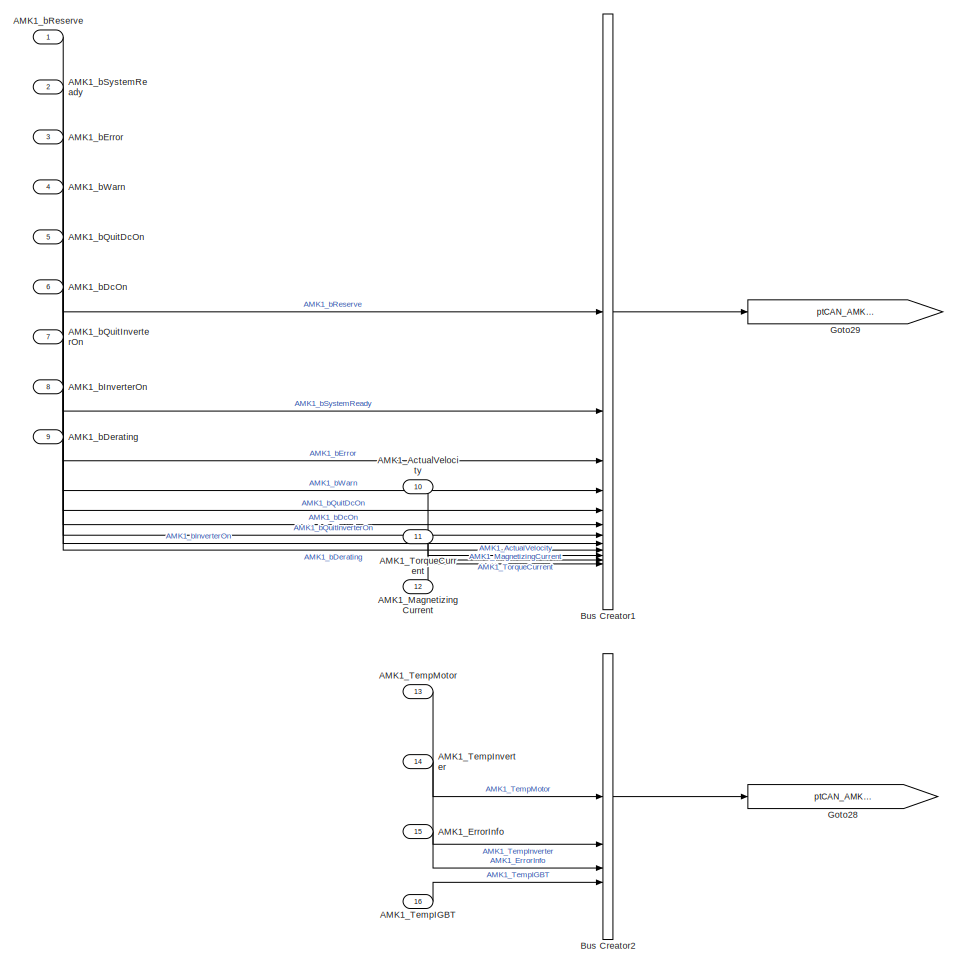
[diagram: root canvas - part 1/7, top left region]
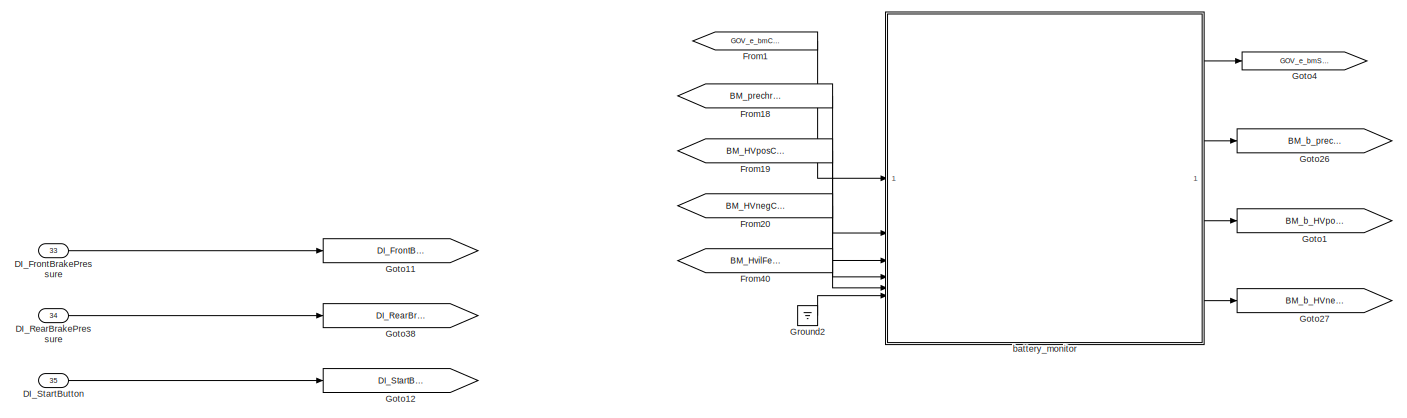
[diagram: root canvas - part 2/7, middle left region]
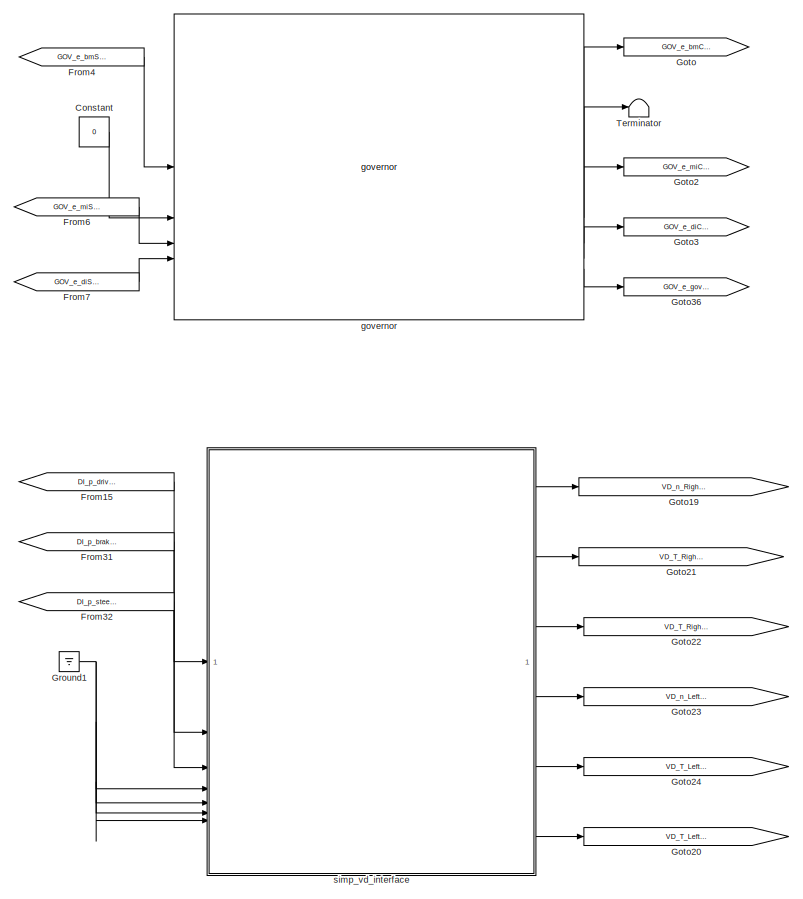
[diagram: root canvas - part 3/7, central region]
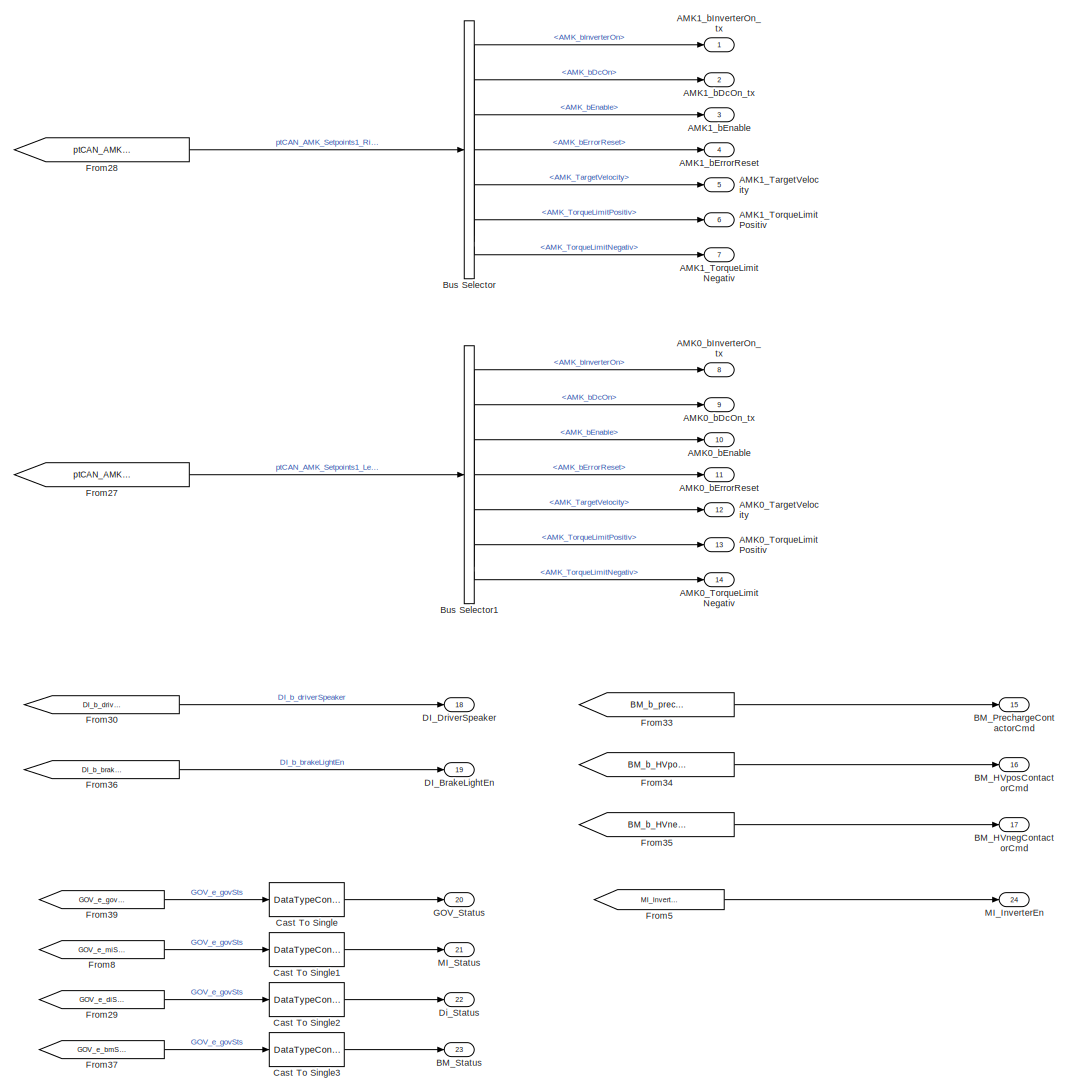
[diagram: root canvas - part 4/7, middle right region]
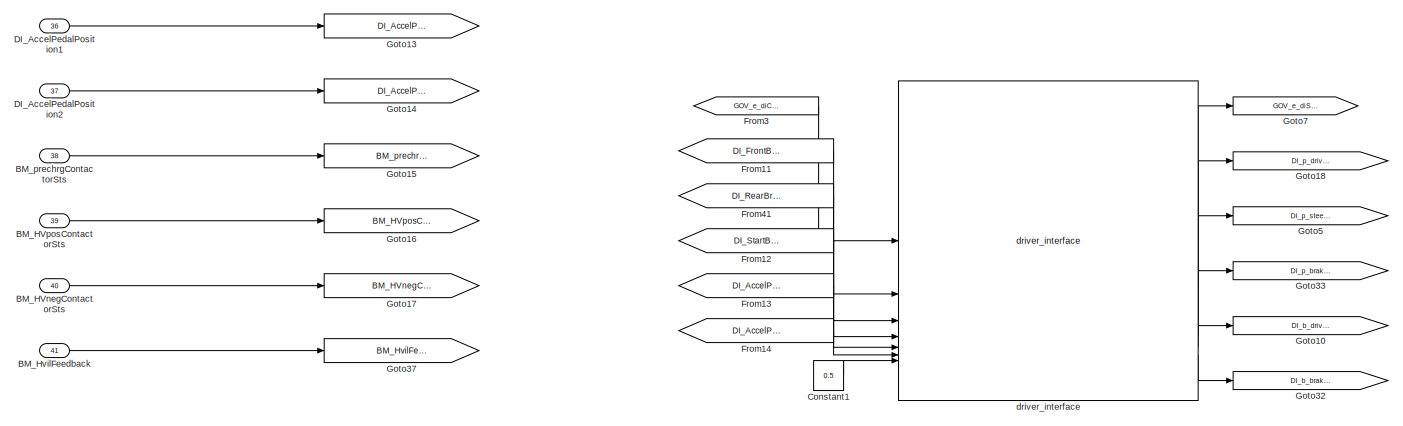
[diagram: root canvas - part 5/7, middle left region]
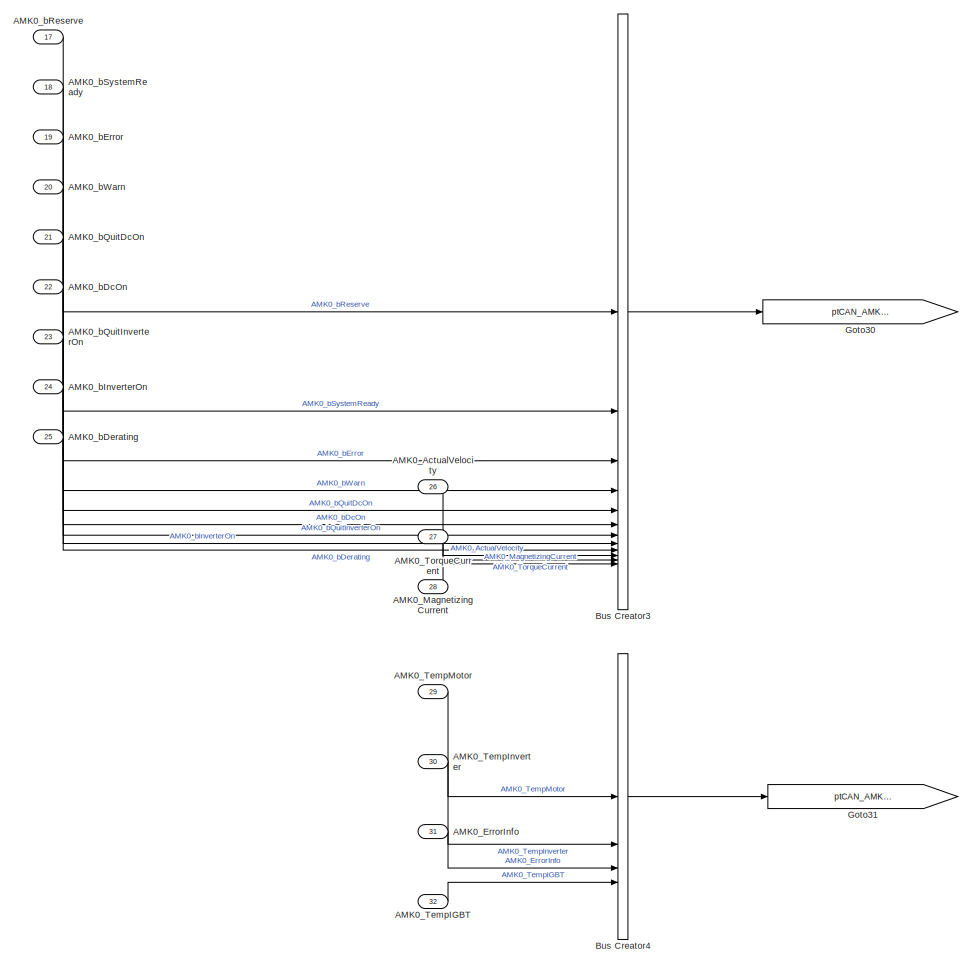
[diagram: root canvas - part 6/7, bottom left region]
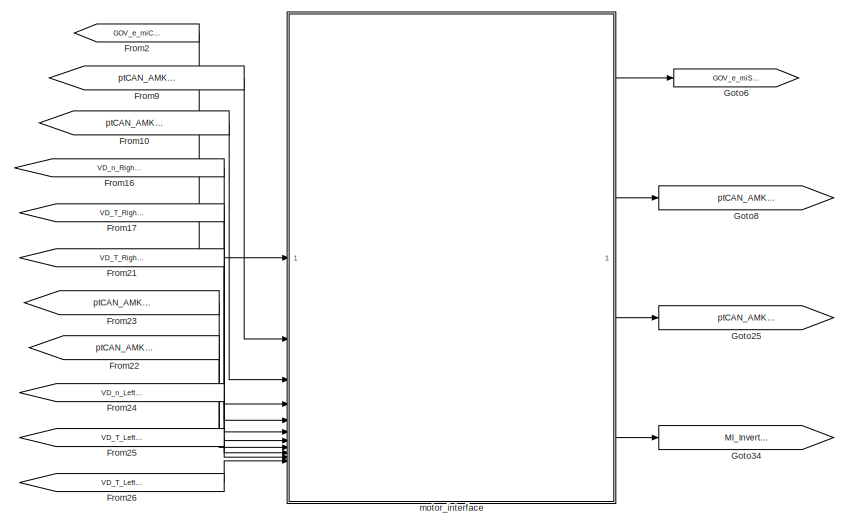
[diagram: root canvas - part 7/7, middle right region]
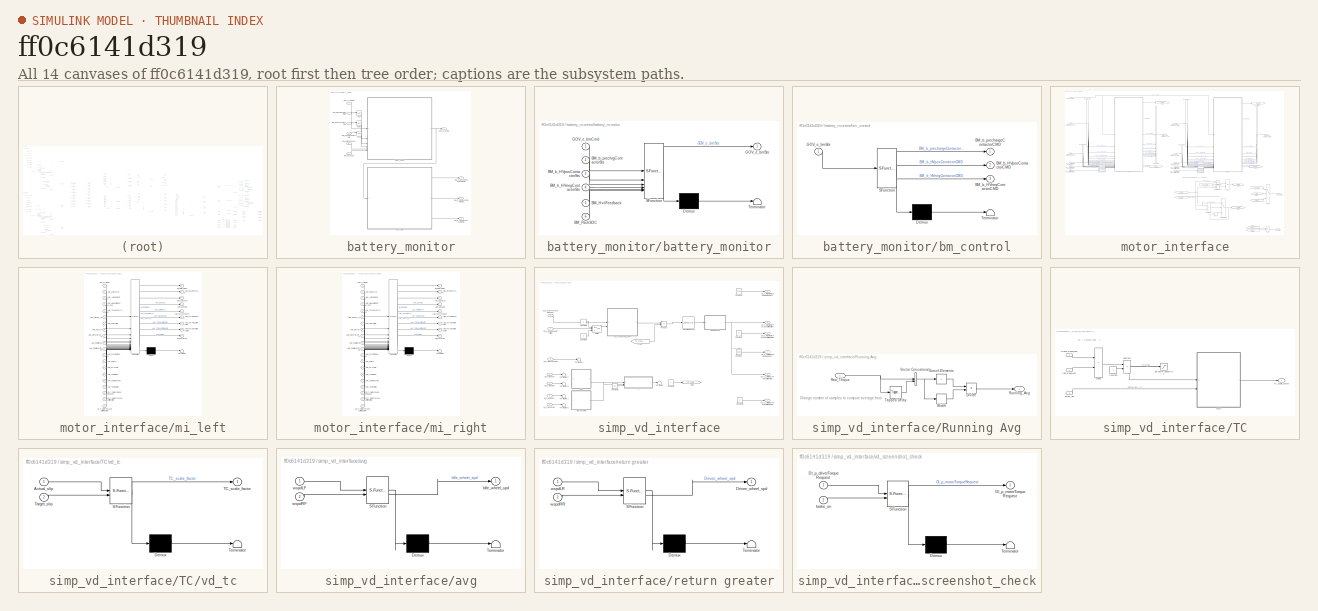
[diagram: thumbnail index - all 14 canvases of the model, root first then tree order]
MODEL slx_ff0c6141d319
KIND model
CONFIG AbsTol = auto
CONFIG EnableMultiTasking = off
CONFIG FixedStep = 0.005
CONFIG MaxStep = auto
CONFIG MinStep = auto
CONFIG RelTol = 1e-3
CONFIG SampleTimeConstraint = Unconstrained
CONFIG SolverName = FixedStepAuto
CONFIG StartTime = 0.0
CONFIG StopTime = inf
BLOCK [Inport] AMK0_ActualVelocity
  OutDataTypeStr = int16
  Port = 26
  Unit = rpm
BLOCK [Inport] AMK0_ErrorInfo
  OutDataTypeStr = uint16
  Port = 31
BLOCK [Inport] AMK0_MagnetizingCurrent
  OutDataTypeStr = int16
  Port = 28
BLOCK [Outport] AMK0_TargetVelocity
  Port = 12
BLOCK [Inport] AMK0_TempIGBT
  OutDataTypeStr = int16
  Port = 32
  Unit = °C
BLOCK [Inport] AMK0_TempInverter
  OutDataTypeStr = int16
  Port = 30
  Unit = °C
BLOCK [Inport] AMK0_TempMotor
  OutDataTypeStr = int16
  Port = 29
  Unit = °C
BLOCK [Inport] AMK0_TorqueCurrent
  OutDataTypeStr = int16
  Port = 27
BLOCK [Outport] AMK0_TorqueLimitNegativ
  Port = 14
BLOCK [Outport] AMK0_TorqueLimitPositiv
  Port = 13
BLOCK [Inport] AMK0_bDcOn
  OutDataTypeStr = boolean
  Port = 22
BLOCK [Outport] AMK0_bDcOn_tx
  Port = 9
BLOCK [Inport] AMK0_bDerating
  OutDataTypeStr = boolean
  Port = 25
BLOCK [Outport] AMK0_bEnable
  Port = 10
BLOCK [Inport] AMK0_bError
  OutDataTypeStr = boolean
  Port = 19
BLOCK [Outport] AMK0_bErrorReset
  Port = 11
BLOCK [Inport] AMK0_bInverterOn
  OutDataTypeStr = boolean
  Port = 24
BLOCK [Outport] AMK0_bInverterOn_tx
  Port = 8
BLOCK [Inport] AMK0_bQuitDcOn
  OutDataTypeStr = boolean
  Port = 21
BLOCK [Inport] AMK0_bQuitInverterOn
  OutDataTypeStr = boolean
  Port = 23
BLOCK [Inport] AMK0_bReserve
  OutDataTypeStr = boolean
  Port = 17
BLOCK [Inport] AMK0_bSystemReady
  OutDataTypeStr = boolean
  Port = 18
BLOCK [Inport] AMK0_bWarn
  OutDataTypeStr = boolean
  Port = 20
BLOCK [Inport] AMK1_ActualVelocity
  OutDataTypeStr = int16
  Port = 10
  Unit = rpm
BLOCK [Inport] AMK1_ErrorInfo
  OutDataTypeStr = uint16
  Port = 15
BLOCK [Inport] AMK1_MagnetizingCurrent
  OutDataTypeStr = int16
  Port = 12
BLOCK [Outport] AMK1_TargetVelocity
  Port = 5
BLOCK [Inport] AMK1_TempIGBT
  OutDataTypeStr = int16
  Port = 16
  Unit = °C
BLOCK [Inport] AMK1_TempInverter
  OutDataTypeStr = int16
  Port = 14
  Unit = °C
BLOCK [Inport] AMK1_TempMotor
  OutDataTypeStr = int16
  Port = 13
  Unit = °C
BLOCK [Inport] AMK1_TorqueCurrent
  OutDataTypeStr = int16
  Port = 11
BLOCK [Outport] AMK1_TorqueLimitNegativ
  Port = 7
BLOCK [Outport] AMK1_TorqueLimitPositiv
  Port = 6
BLOCK [Inport] AMK1_bDcOn
  OutDataTypeStr = boolean
  Port = 6
BLOCK [Outport] AMK1_bDcOn_tx
  Port = 2
BLOCK [Inport] AMK1_bDerating
  OutDataTypeStr = boolean
  Port = 9
BLOCK [Outport] AMK1_bEnable
  Port = 3
BLOCK [Inport] AMK1_bError
  OutDataTypeStr = boolean
  Port = 3
BLOCK [Outport] AMK1_bErrorReset
  Port = 4
BLOCK [Inport] AMK1_bInverterOn
  OutDataTypeStr = boolean
  Port = 8
BLOCK [Outport] AMK1_bInverterOn_tx
BLOCK [Inport] AMK1_bQuitDcOn
  OutDataTypeStr = boolean
  Port = 5
BLOCK [Inport] AMK1_bQuitInverterOn
  OutDataTypeStr = boolean
  Port = 7
BLOCK [Inport] AMK1_bReserve
  OutDataTypeStr = boolean
BLOCK [Inport] AMK1_bSystemReady
  OutDataTypeStr = boolean
  Port = 2
BLOCK [Inport] AMK1_bWarn
  OutDataTypeStr = boolean
  Port = 4
BLOCK [Outport] BM_HVnegContactorCmd
  Port = 17
BLOCK [Inport] BM_HVnegContactorSts
  OutDataTypeStr = boolean
  Port = 40
BLOCK [Outport] BM_HVposContactorCmd
  Port = 16
BLOCK [Inport] BM_HVposContactorSts
  OutDataTypeStr = boolean
  Port = 39
BLOCK [Inport] BM_HvilFeedback
  OutDataTypeStr = boolean
  Port = 41
BLOCK [Outport] BM_PrechargeContactorCmd
  Port = 15
BLOCK [Outport] BM_Status
  Port = 23
BLOCK [Inport] BM_prechrgContactorSts
  OutDataTypeStr = boolean
  Port = 38
BLOCK [BusCreator] Bus Creator1
  DisplayOption = bar
  InheritFromInputs = on
  Inputs = 12
BLOCK [BusCreator] Bus Creator2
  DisplayOption = bar
  InheritFromInputs = on
  Inputs = 4
BLOCK [BusCreator] Bus Creator3
  DisplayOption = bar
  InheritFromInputs = on
  Inputs = 12
BLOCK [BusCreator] Bus Creator4
  DisplayOption = bar
  InheritFromInputs = on
  Inputs = 4
BLOCK [BusSelector] Bus Selector
  OutputSignals = AMK_bInverterOn,AMK_bDcOn,AMK_bEnable,AMK_bErrorReset,AMK_TargetVelocity,AMK_TorqueLimitPositiv,AMK_TorqueLimitNegativ
BLOCK [BusSelector] Bus Selector1
  OutputSignals = AMK_bInverterOn,AMK_bDcOn,AMK_bEnable,AMK_bErrorReset,AMK_TargetVelocity,AMK_TorqueLimitPositiv,AMK_TorqueLimitNegativ
BLOCK [DataTypeConversion] Cast To Single
  OutDataTypeStr = uint8
  RndMeth = Floor
  SaturateOnIntegerOverflow = off
BLOCK [DataTypeConversion] Cast To Single1
  OutDataTypeStr = uint8
  RndMeth = Floor
  SaturateOnIntegerOverflow = off
BLOCK [DataTypeConversion] Cast To Single2
  OutDataTypeStr = uint8
  RndMeth = Floor
  SaturateOnIntegerOverflow = off
BLOCK [DataTypeConversion] Cast To Single3
  OutDataTypeStr = uint8
  RndMeth = Floor
  SaturateOnIntegerOverflow = off
BLOCK [Constant] Constant
  Value = 0
BLOCK [Constant] Constant1
  Value = 0.5
BLOCK [Inport] DI_AccelPedalPosition1
  OutDataTypeStr = double
  Port = 36
BLOCK [Inport] DI_AccelPedalPosition2
  OutDataTypeStr = double
  Port = 37
BLOCK [Outport] DI_BrakeLightEn
  OutDataTypeStr = boolean
  Port = 19
BLOCK [Outport] DI_DriverSpeaker
  OutDataTypeStr = boolean
  Port = 18
BLOCK [Inport] DI_FrontBrakePressure
  OutDataTypeStr = double
  Port = 33
BLOCK [Inport] DI_RearBrakePressure
  OutDataTypeStr = double
  Port = 34
BLOCK [Inport] DI_StartButton
  OutDataTypeStr = boolean
  Port = 35
BLOCK [Outport] Di_Status
  Port = 22
BLOCK [From] From1
  GotoTag = GOV_e_bmCmd
BLOCK [From] From10
  GotoTag = ptCAN_AMK_ActualValues2_Right
BLOCK [From] From11
  GotoTag = DI_FrontBrakePressure
BLOCK [From] From12
  GotoTag = DI_StartButton
BLOCK [From] From13
  GotoTag = DI_AccelPedalPosition1
BLOCK [From] From14
  GotoTag = DI_AccelPedalPosition2
BLOCK [From] From15
  GotoTag = DI_p_driverTorqueRequest
BLOCK [From] From16
  GotoTag = VD_n_RightMotorSpeedRequest
BLOCK [From] From17
  GotoTag = VD_T_RightMotorTorqueLimitPositive
BLOCK [From] From18
  GotoTag = BM_prechrgContactorSts
BLOCK [From] From19
  GotoTag = BM_HVposContactorSts
BLOCK [From] From2
  GotoTag = GOV_e_miCmd
BLOCK [From] From20
  GotoTag = BM_HVnegContactorSts
BLOCK [From] From21
  GotoTag = VD_T_RightMotorTorqueLimitNegative
BLOCK [From] From22
  GotoTag = ptCAN_AMK_ActualValues2_Left
BLOCK [From] From23
  GotoTag = ptCAN_AMK_ActualValues1_Left
BLOCK [From] From24
  GotoTag = VD_n_LeftMotorSpeedRequest
BLOCK [From] From25
  GotoTag = VD_T_LeftMotorTorqueLimitPositive
BLOCK [From] From26
  GotoTag = VD_T_LeftMotorTorqueLimitNegative
BLOCK [From] From27
  GotoTag = ptCAN_AMK_Setpoints1_Left
BLOCK [From] From28
  GotoTag = ptCAN_AMK_Setpoints1_Right
BLOCK [From] From29
  GotoTag = GOV_e_diSts
BLOCK [From] From3
  GotoTag = GOV_e_diCmd
BLOCK [From] From30
  GotoTag = DI_b_driverSpeaker
BLOCK [From] From31
  GotoTag = DI_p_brakePedalPosition
BLOCK [From] From32
  GotoTag = DI_p_steeringAngle
BLOCK [From] From33
  GotoTag = BM_b_prechargeContactorCMD
BLOCK [From] From34
  GotoTag = BM_b_HVposContactorCMD
BLOCK [From] From35
  GotoTag = BM_b_HVnegContactorCMD
BLOCK [From] From36
  GotoTag = DI_b_brakeLightEn
BLOCK [From] From37
  GotoTag = GOV_e_bmSts
BLOCK [From] From39
  GotoTag = GOV_e_govSts
BLOCK [From] From4
  GotoTag = GOV_e_bmSts
BLOCK [From] From40
  GotoTag = BM_HvilFeedback
BLOCK [From] From41
  GotoTag = DI_RearBrakePressure
BLOCK [From] From5
  GotoTag = MI_InverterEn
BLOCK [From] From6
  GotoTag = GOV_e_miSts
BLOCK [From] From7
  GotoTag = GOV_e_diSts
BLOCK [From] From8
  GotoTag = GOV_e_miSts
BLOCK [From] From9
  GotoTag = ptCAN_AMK_ActualValues1_Right
BLOCK [Outport] GOV_Status
  Port = 20
BLOCK [Goto] Goto
  GotoTag = GOV_e_bmCmd
BLOCK [Goto] Goto1
  GotoTag = BM_b_HVposContactorCMD
BLOCK [Goto] Goto10
  GotoTag = DI_b_driverSpeaker
BLOCK [Goto] Goto11
  GotoTag = DI_FrontBrakePressure
BLOCK [Goto] Goto12
  GotoTag = DI_StartButton
BLOCK [Goto] Goto13
  GotoTag = DI_AccelPedalPosition1
BLOCK [Goto] Goto14
  GotoTag = DI_AccelPedalPosition2
BLOCK [Goto] Goto15
  GotoTag = BM_prechrgContactorSts
BLOCK [Goto] Goto16
  GotoTag = BM_HVposContactorSts
BLOCK [Goto] Goto17
  GotoTag = BM_HVnegContactorSts
BLOCK [Goto] Goto18
  GotoTag = DI_p_driverTorqueRequest
BLOCK [Goto] Goto19
  GotoTag = VD_n_RightMotorSpeedRequest
BLOCK [Goto] Goto2
  GotoTag = GOV_e_miCmd
BLOCK [Goto] Goto20
  GotoTag = VD_T_LeftMotorTorqueLimitNegative
BLOCK [Goto] Goto21
  GotoTag = VD_T_RightMotorTorqueLimitPositive
BLOCK [Goto] Goto22
  GotoTag = VD_T_RightMotorTorqueLimitNegative
BLOCK [Goto] Goto23
  GotoTag = VD_n_LeftMotorSpeedRequest
BLOCK [Goto] Goto24
  GotoTag = VD_T_LeftMotorTorqueLimitPositive
BLOCK [Goto] Goto25
  GotoTag = ptCAN_AMK_Setpoints1_Left
BLOCK [Goto] Goto26
  GotoTag = BM_b_prechargeContactorCMD
BLOCK [Goto] Goto27
  GotoTag = BM_b_HVnegContactorCMD
  NameLocation = left
BLOCK [Goto] Goto28
  GotoTag = ptCAN_AMK_ActualValues2_Right
BLOCK [Goto] Goto29
  GotoTag = ptCAN_AMK_ActualValues1_Right
BLOCK [Goto] Goto3
  GotoTag = GOV_e_diCmd
BLOCK [Goto] Goto30
  GotoTag = ptCAN_AMK_ActualValues1_Left
BLOCK [Goto] Goto31
  GotoTag = ptCAN_AMK_ActualValues2_Left
BLOCK [Goto] Goto32
  GotoTag = DI_b_brakeLightEn
BLOCK [Goto] Goto33
  GotoTag = DI_p_brakePedalPosition
BLOCK [Goto] Goto34
  GotoTag = MI_InverterEn
BLOCK [Goto] Goto36
  GotoTag = GOV_e_govSts
BLOCK [Goto] Goto37
  GotoTag = BM_HvilFeedback
BLOCK [Goto] Goto38
  GotoTag = DI_RearBrakePressure
BLOCK [Goto] Goto4
  GotoTag = GOV_e_bmSts
BLOCK [Goto] Goto5
  GotoTag = DI_p_steeringAngle
BLOCK [Goto] Goto6
  GotoTag = GOV_e_miSts
BLOCK [Goto] Goto7
  GotoTag = GOV_e_diSts
BLOCK [Goto] Goto8
  GotoTag = ptCAN_AMK_Setpoints1_Right
BLOCK [Ground] Ground1
BLOCK [Ground] Ground2
BLOCK [Outport] MI_InverterEn
  OutDataTypeStr = boolean
  Port = 24
BLOCK [Outport] MI_Status
  Port = 21
BLOCK [Terminator] Terminator
BLOCK [SubSystem] battery_monitor
  AncestorBlock = battery_monitor_lib/battery_monitor
BLOCK [Inport] battery_monitor/BM_HVnegContactorSts
  Port = 4
BLOCK [Inport] battery_monitor/BM_HVposContactorSts
  Port = 3
BLOCK [Inport] battery_monitor/BM_HvilFeedback
  Port = 5
BLOCK [Inport] battery_monitor/BM_PackSOC
  Port = 6
BLOCK [Outport] battery_monitor/BM_b_HVnegContactorCMD
  Port = 4
BLOCK [Outport] battery_monitor/BM_b_HVposContactorCMD
  Port = 3
BLOCK [Outport] battery_monitor/BM_b_prechargeContactorCMD
  Port = 2
BLOCK [Inport] battery_monitor/BM_prechrgContactorSts
  Port = 2
BLOCK [Inport] battery_monitor/GOV_e_bmCmd
BLOCK [Outport] battery_monitor/GOV_e_bmSts
BLOCK [Logic] battery_monitor/NOT
  AllPortsSameDT = off
  IconShape = distinctive
  Operator = NOT
  OutDataTypeStr = boolean
BLOCK [Logic] battery_monitor/NOT1
  AllPortsSameDT = off
  IconShape = distinctive
  Operator = NOT
  OutDataTypeStr = boolean
BLOCK [Logic] battery_monitor/NOT2
  AllPortsSameDT = off
  IconShape = distinctive
  Operator = NOT
  OutDataTypeStr = boolean
BLOCK [SubSystem] battery_monitor/battery_monitor
  ErrorFcn = Stateflow.Translate.translate
  PermitHierarchicalResolution = ExplicitOnly
  SFBlockType = Chart
  TreatAsAtomicUnit = on
BLOCK [Demux] battery_monitor/battery_monitor/ Demux 
  Outputs = 1
BLOCK [S-Function] battery_monitor/battery_monitor/ SFunction 
  EnableBusSupport = on
  FunctionName = sf_sfun
  PortCounts = [6 2]
  SFcnIsStateOwnerBlock = off
  SFunctionDeploymentMode = off
  Tag = Stateflow S-Function 4
BLOCK [Terminator] battery_monitor/battery_monitor/ Terminator 
BLOCK [Inport] battery_monitor/battery_monitor/BM_HvilFeedback
  Port = 5
BLOCK [Inport] battery_monitor/battery_monitor/BM_PackSOC
  Port = 6
BLOCK [Inport] battery_monitor/battery_monitor/BM_b_HVnegContactorSts
  Port = 4
BLOCK [Inport] battery_monitor/battery_monitor/BM_b_HVposContactorSts
  Port = 3
BLOCK [Inport] battery_monitor/battery_monitor/BM_b_prechrgContactorSts
  Port = 2
BLOCK [Inport] battery_monitor/battery_monitor/GOV_e_bmCmd
BLOCK [Outport] battery_monitor/battery_monitor/GOV_e_bmSts
BLOCK [SubSystem] battery_monitor/bm_control
  ErrorFcn = Stateflow.Translate.translate
  PermitHierarchicalResolution = ExplicitOnly
  SFBlockType = Chart
  TreatAsAtomicUnit = on
BLOCK [Demux] battery_monitor/bm_control/ Demux 
  Outputs = 1
BLOCK [S-Function] battery_monitor/bm_control/ SFunction 
  EnableBusSupport = on
  FunctionName = sf_sfun
  PortCounts = [1 4]
  SFcnIsStateOwnerBlock = off
  SFunctionDeploymentMode = off
  Tag = Stateflow S-Function 5
BLOCK [Terminator] battery_monitor/bm_control/ Terminator 
BLOCK [Outport] battery_monitor/bm_control/BM_b_HVnegContactorCMD
  Port = 3
BLOCK [Outport] battery_monitor/bm_control/BM_b_HVposContactorCMD
  Port = 2
BLOCK [Outport] battery_monitor/bm_control/BM_b_prechargeContactorCMD
BLOCK [Inport] battery_monitor/bm_control/GOV_e_bmSts
BLOCK [Reference] driver_interface  REF=driver_interface_lib/driver_interface  (lib defined in slx_3cb616a1b385)
  SourceBlock = driver_interface_lib/driver_interface
  SourceType = SubSystem
BLOCK [Reference] governor  REF=governor_lib/governor  (lib defined in slx_791b6fe89bfd)
  SourceBlock = governor_lib/governor
  SourceType = SubSystem
BLOCK [SubSystem] motor_interface
  AncestorBlock = motor_interface_lib/motor_interface
BLOCK [Logic] motor_interface/AND
  AllPortsSameDT = off
  OutDataTypeStr = boolean
BLOCK [BusCreator] motor_interface/Bus Creator
  DisplayOption = bar
  InheritFromInputs = on
  Inputs = 7
BLOCK [BusCreator] motor_interface/Bus Creator1
  DisplayOption = bar
  InheritFromInputs = on
  Inputs = 7
BLOCK [BusSelector] motor_interface/Bus Selector
  OutputSignals = AMK1_bReserve,AMK1_ActualVelocity,AMK1_MagnetizingCurrent,AMK1_TorqueCurrent,AMK1_bDcOn,AMK1_bDerating,AMK1_bError,AMK1_bInverterOn,AMK1_bQuitDcOn,AMK1_bQuitInverterOn,AMK1_bSystemReady,AMK1_bWarn
BLOCK [BusSelector] motor_interface/Bus Selector1
  OutputSignals = AMK1_ErrorInfo,AMK1_TempIGBT,AMK1_TempInverter,AMK1_TempMotor
BLOCK [BusSelector] motor_interface/Bus Selector2
  OutputSignals = AMK0_bReserve,AMK0_ActualVelocity,AMK0_MagnetizingCurrent,AMK0_TorqueCurrent,AMK0_bDcOn,AMK0_bDerating,AMK0_bError,AMK0_bInverterOn,AMK0_bQuitDcOn,AMK0_bQuitInverterOn,AMK0_bSystemReady,AMK0_bWarn
BLOCK [BusSelector] motor_interface/Bus Selector3
  OutputSignals = AMK0_ErrorInfo,AMK0_TempIGBT,AMK0_TempInverter,AMK0_TempMotor
BLOCK [DataTypeConversion] motor_interface/Cast To Single
  OutDataTypeStr = single
  RndMeth = Floor
  SaturateOnIntegerOverflow = off
BLOCK [DataTypeConversion] motor_interface/Cast To Single1
  OutDataTypeStr = single
  RndMeth = Floor
  SaturateOnIntegerOverflow = off
BLOCK [DataTypeConversion] motor_interface/Cast To Single2
  OutDataTypeStr = single
  RndMeth = Floor
  SaturateOnIntegerOverflow = off
BLOCK [DataTypeConversion] motor_interface/Cast To Single3
  OutDataTypeStr = single
  RndMeth = Floor
  SaturateOnIntegerOverflow = off
BLOCK [DataTypeConversion] motor_interface/Cast To Single4
  OutDataTypeStr = single
  RndMeth = Floor
  SaturateOnIntegerOverflow = off
BLOCK [DataTypeConversion] motor_interface/Cast To Single5
  OutDataTypeStr = single
  RndMeth = Floor
  SaturateOnIntegerOverflow = off
BLOCK [Constant] motor_interface/Constant
  OutDataTypeStr = Enum: MI_STATUSES
  Value = MI_STATUSES.MI_STS_ERROR
BLOCK [Constant] motor_interface/Constant1
  OutDataTypeStr = Enum: MI_STATUSES
  Value = MI_STATUSES.MI_STS_ERROR
BLOCK [Delay] motor_interface/Delay
  DelayLength = 1
  InitialCondition = MI_STATUSES.OFF
  InputPortMap = u0
BLOCK [From] motor_interface/From
  GotoTag = Left_motorStatus
BLOCK [From] motor_interface/From1
  GotoTag = Right_motorStatus
BLOCK [From] motor_interface/From2
  GotoTag = overallMotorState
BLOCK [From] motor_interface/From3
  GotoTag = Left_inverterEn
BLOCK [From] motor_interface/From4
  GotoTag = motorErrorActive
BLOCK [From] motor_interface/From5
  GotoTag = Right_inverterEn
BLOCK [Inport] motor_interface/GOV_e_miCmd
BLOCK [Outport] motor_interface/GOV_e_miSts
BLOCK [Goto] motor_interface/Goto
  GotoTag = Left_motorStatus
BLOCK [Goto] motor_interface/Goto1
  GotoTag = Right_motorStatus
BLOCK [Goto] motor_interface/Goto2
  GotoTag = motorErrorActive
BLOCK [Goto] motor_interface/Goto3
  GotoTag = overallMotorState
BLOCK [Goto] motor_interface/Goto4
  GotoTag = Left_inverterEn
BLOCK [Goto] motor_interface/Goto5
  GotoTag = Right_inverterEn
BLOCK [RelationalOperator] motor_interface/GreaterThan
  InputSameDT = off
  Operator = ==
  OutDataTypeStr = boolean
  RndMeth = Simplest
BLOCK [Outport] motor_interface/MI_InverterEn
  Port = 4
BLOCK [Logic] motor_interface/OR
  AllPortsSameDT = off
  IconShape = distinctive
  Operator = OR
  OutDataTypeStr = boolean
BLOCK [Switch] motor_interface/Switch
  Criteria = u2 > Threshold
  InputSameDT = off
  SaturateOnIntegerOverflow = off
BLOCK [Inport] motor_interface/VD_T_LeftMotorTorqueLimitNegative
  Port = 11
BLOCK [Inport] motor_interface/VD_T_LeftMotorTorqueLimitPositive
  Port = 10
BLOCK [Inport] motor_interface/VD_T_RightMotorTorqueLimitNegative
  Port = 6
BLOCK [Inport] motor_interface/VD_T_RightMotorTorqueLimitPositive
  Port = 5
BLOCK [Inport] motor_interface/VD_n_LeftMotorSpeedRequest
  Port = 9
BLOCK [Inport] motor_interface/VD_n_RightMotorSpeedRequest
  Port = 4
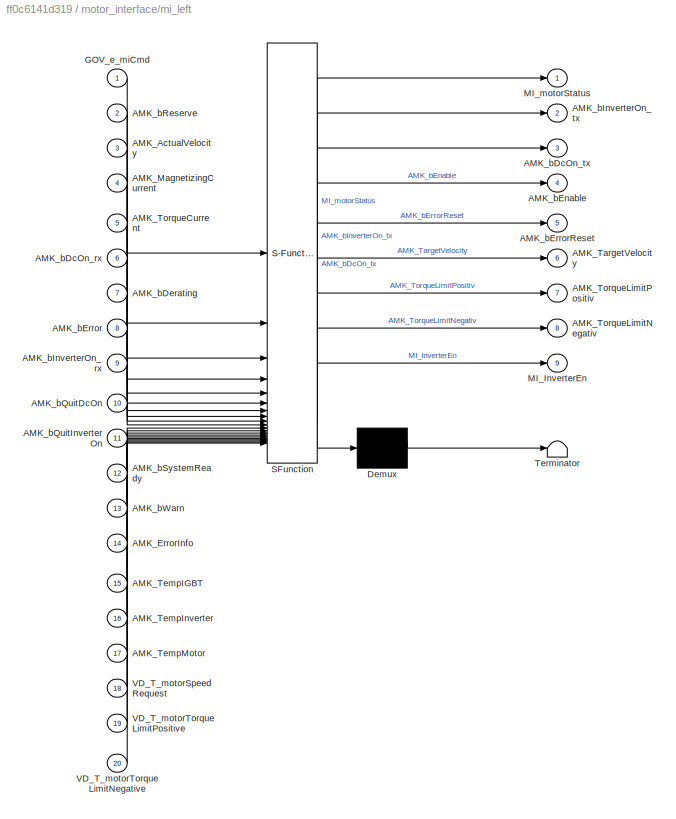
BLOCK [SubSystem] motor_interface/mi_left
  ErrorFcn = Stateflow.Translate.translate
  PermitHierarchicalResolution = ExplicitOnly
  SFBlockType = Chart
  TreatAsAtomicUnit = on
BLOCK [Demux] motor_interface/mi_left/ Demux 
  Outputs = 1
BLOCK [S-Function] motor_interface/mi_left/ SFunction 
  EnableBusSupport = on
  FunctionName = sf_sfun
  PortCounts = [20 10]
  SFcnIsStateOwnerBlock = off
  SFunctionDeploymentMode = off
  Tag = Stateflow S-Function 9
BLOCK [Terminator] motor_interface/mi_left/ Terminator 
BLOCK [Inport] motor_interface/mi_left/AMK_ActualVelocity
  Port = 3
BLOCK [Inport] motor_interface/mi_left/AMK_ErrorInfo
  Port = 14
BLOCK [Inport] motor_interface/mi_left/AMK_MagnetizingCurrent
  Port = 4
BLOCK [Outport] motor_interface/mi_left/AMK_TargetVelocity
  Port = 6
BLOCK [Inport] motor_interface/mi_left/AMK_TempIGBT
  Port = 15
BLOCK [Inport] motor_interface/mi_left/AMK_TempInverter
  Port = 16
BLOCK [Inport] motor_interface/mi_left/AMK_TempMotor
  Port = 17
BLOCK [Inport] motor_interface/mi_left/AMK_TorqueCurrent
  Port = 5
BLOCK [Outport] motor_interface/mi_left/AMK_TorqueLimitNegativ
  Port = 8
BLOCK [Outport] motor_interface/mi_left/AMK_TorqueLimitPositiv
  Port = 7
BLOCK [Inport] motor_interface/mi_left/AMK_bDcOn_rx
  Port = 6
BLOCK [Outport] motor_interface/mi_left/AMK_bDcOn_tx
  Port = 3
BLOCK [Inport] motor_interface/mi_left/AMK_bDerating
  Port = 7
BLOCK [Outport] motor_interface/mi_left/AMK_bEnable
  Port = 4
BLOCK [Inport] motor_interface/mi_left/AMK_bError
  Port = 8
BLOCK [Outport] motor_interface/mi_left/AMK_bErrorReset
  Port = 5
BLOCK [Inport] motor_interface/mi_left/AMK_bInverterOn_rx
  Port = 9
BLOCK [Outport] motor_interface/mi_left/AMK_bInverterOn_tx
  Port = 2
BLOCK [Inport] motor_interface/mi_left/AMK_bQuitDcOn
  Port = 10
BLOCK [Inport] motor_interface/mi_left/AMK_bQuitInverterOn
  Port = 11
BLOCK [Inport] motor_interface/mi_left/AMK_bReserve
  Port = 2
BLOCK [Inport] motor_interface/mi_left/AMK_bSystemReady
  Port = 12
BLOCK [Inport] motor_interface/mi_left/AMK_bWarn
  Port = 13
BLOCK [Inport] motor_interface/mi_left/GOV_e_miCmd
BLOCK [Outport] motor_interface/mi_left/MI_InverterEn
  Port = 9
BLOCK [Outport] motor_interface/mi_left/MI_motorStatus
BLOCK [Inport] motor_interface/mi_left/VD_T_motorSpeedRequest
  Port = 18
BLOCK [Inport] motor_interface/mi_left/VD_T_motorTorqueLimitNegative
  Port = 20
BLOCK [Inport] motor_interface/mi_left/VD_T_motorTorqueLimitPositive
  Port = 19
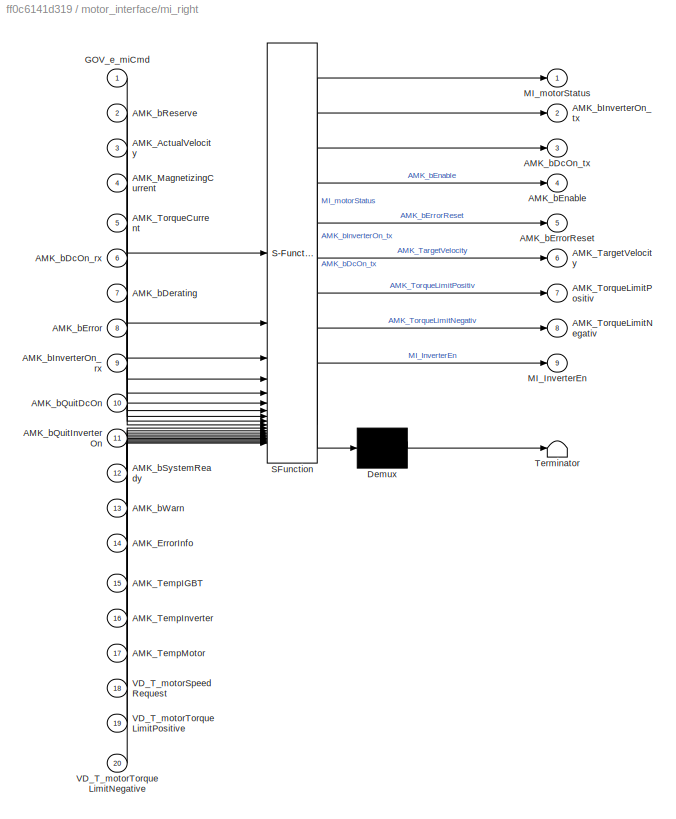
BLOCK [SubSystem] motor_interface/mi_right
  ErrorFcn = Stateflow.Translate.translate
  PermitHierarchicalResolution = ExplicitOnly
  PortSchema = {"entries":[{"content":{"sides":[{"content":{"connectorIds":["In1","In2","In3","In4","In5","In6","In7","In8","In9","In10","In11","In13","In12","In14","In15","In16","In17","In18","In19","In20"]},"type":"ConnectorPlacement.EquallySpacedRectSide","uuid":"4ac705c0-d1d9-4003-b310-2a1b9a58c74b"},{"content":{"connectorIds":["Out1","Out2","Out3","Out4","Out5","Out6","Out7","Out8","Out9"],"side":"RIGHT"},"...<+421ch>
  SFBlockType = Chart
  TreatAsAtomicUnit = on
BLOCK [Demux] motor_interface/mi_right/ Demux 
  Outputs = 1
BLOCK [S-Function] motor_interface/mi_right/ SFunction 
  EnableBusSupport = on
  FunctionName = sf_sfun
  PortCounts = [20 10]
  SFcnIsStateOwnerBlock = off
  SFunctionDeploymentMode = off
  Tag = Stateflow S-Function 10
BLOCK [Terminator] motor_interface/mi_right/ Terminator 
BLOCK [Inport] motor_interface/mi_right/AMK_ActualVelocity
  Port = 3
BLOCK [Inport] motor_interface/mi_right/AMK_ErrorInfo
  Port = 14
BLOCK [Inport] motor_interface/mi_right/AMK_MagnetizingCurrent
  Port = 4
BLOCK [Outport] motor_interface/mi_right/AMK_TargetVelocity
  Port = 6
BLOCK [Inport] motor_interface/mi_right/AMK_TempIGBT
  Port = 15
BLOCK [Inport] motor_interface/mi_right/AMK_TempInverter
  Port = 16
BLOCK [Inport] motor_interface/mi_right/AMK_TempMotor
  Port = 17
BLOCK [Inport] motor_interface/mi_right/AMK_TorqueCurrent
  Port = 5
BLOCK [Outport] motor_interface/mi_right/AMK_TorqueLimitNegativ
  Port = 8
BLOCK [Outport] motor_interface/mi_right/AMK_TorqueLimitPositiv
  Port = 7
BLOCK [Inport] motor_interface/mi_right/AMK_bDcOn_rx
  Port = 6
BLOCK [Outport] motor_interface/mi_right/AMK_bDcOn_tx
  Port = 3
BLOCK [Inport] motor_interface/mi_right/AMK_bDerating
  Port = 7
BLOCK [Outport] motor_interface/mi_right/AMK_bEnable
  Port = 4
BLOCK [Inport] motor_interface/mi_right/AMK_bError
  Port = 8
BLOCK [Outport] motor_interface/mi_right/AMK_bErrorReset
  Port = 5
BLOCK [Inport] motor_interface/mi_right/AMK_bInverterOn_rx
  Port = 9
BLOCK [Outport] motor_interface/mi_right/AMK_bInverterOn_tx
  Port = 2
BLOCK [Inport] motor_interface/mi_right/AMK_bQuitDcOn
  Port = 10
BLOCK [Inport] motor_interface/mi_right/AMK_bQuitInverterOn
  Port = 11
BLOCK [Inport] motor_interface/mi_right/AMK_bReserve
  Port = 2
BLOCK [Inport] motor_interface/mi_right/AMK_bSystemReady
  Port = 12
BLOCK [Inport] motor_interface/mi_right/AMK_bWarn
  Port = 13
BLOCK [Inport] motor_interface/mi_right/GOV_e_miCmd
BLOCK [Outport] motor_interface/mi_right/MI_InverterEn
  Port = 9
BLOCK [Outport] motor_interface/mi_right/MI_motorStatus
BLOCK [Inport] motor_interface/mi_right/VD_T_motorSpeedRequest
  Port = 18
BLOCK [Inport] motor_interface/mi_right/VD_T_motorTorqueLimitNegative
  Port = 20
BLOCK [Inport] motor_interface/mi_right/VD_T_motorTorqueLimitPositive
  Port = 19
BLOCK [RelationalOperator] motor_interface/motorErrorActive
  InputSameDT = off
  Operator = ==
  OutDataTypeStr = boolean
  RndMeth = Simplest
BLOCK [RelationalOperator] motor_interface/motorErrorActive1
  InputSameDT = off
  Operator = ==
  OutDataTypeStr = boolean
  RndMeth = Simplest
BLOCK [Switch] motor_interface/overallMotorState
  Criteria = u2 > Threshold
  InputSameDT = off
  SaturateOnIntegerOverflow = off
BLOCK [Inport] motor_interface/ptCAN_AMK_ActualValues1_Left
  Port = 7
BLOCK [Inport] motor_interface/ptCAN_AMK_ActualValues1_Right
  Port = 2
BLOCK [Inport] motor_interface/ptCAN_AMK_ActualValues2_Left
  Port = 8
BLOCK [Inport] motor_interface/ptCAN_AMK_ActualValues2_Right
  Port = 3
BLOCK [Outport] motor_interface/ptCAN_AMK_Setpoints1_Left
  Port = 3
BLOCK [Outport] motor_interface/ptCAN_AMK_Setpoints1_Right
  Port = 2
BLOCK [SubSystem] simp_vd_interface
  AncestorBlock = simp_vd_lib/simp_vd_interface
BLOCK [Lookup_n-D] simp_vd_interface/%pedal to %torque
  BreakpointsForDimension1 = [linspace(0,1,101)]
  InputPortMap = u0
  InternalRulePriority = Speed
  NumberOfTableDimensions = 1
  RndMeth = Simplest
  Table = [linspace(0,600,101)]
BLOCK [Constant] simp_vd_interface/Constant
  Value = 10000
BLOCK [Constant] simp_vd_interface/Constant1
  Value = 10000
BLOCK [Constant] simp_vd_interface/Constant2
  Value = 0
BLOCK [Constant] simp_vd_interface/Constant3
  Value = 0
BLOCK [Constant] simp_vd_interface/Constant4
  Value = 0
BLOCK [Constant] simp_vd_interface/Constant5
BLOCK [Constant] simp_vd_interface/Constant6
  Commented = on
  Value = 0.2
BLOCK [Constant] simp_vd_interface/Constant7
BLOCK [Inport] simp_vd_interface/DI_p_brakePedalPosition
  Port = 2
BLOCK [Inport] simp_vd_interface/DI_p_driverTorqueRequest
BLOCK [Inport] simp_vd_interface/DI_p_steeringAngle
  Port = 3
BLOCK [Inport] simp_vd_interface/DI_p_wspdLF
  Port = 4
BLOCK [Inport] simp_vd_interface/DI_p_wspdLR
  Port = 6
BLOCK [Inport] simp_vd_interface/DI_p_wspdLRR
  Port = 7
BLOCK [Inport] simp_vd_interface/DI_p_wspdRF
  Port = 5
BLOCK [From] simp_vd_interface/From
  GotoTag = TC_scale_factor
BLOCK [Goto] simp_vd_interface/Goto
  GotoTag = TC_scale_factor
BLOCK [Product] simp_vd_interface/Product
BLOCK [SubSystem] simp_vd_interface/Running Avg
BLOCK [Product] simp_vd_interface/Running Avg/Divide
  Inputs = */
BLOCK [Inport] simp_vd_interface/Running Avg/Raw_Torque
BLOCK [Outport] simp_vd_interface/Running Avg/Running_Avg
BLOCK [Sum] simp_vd_interface/Running Avg/Sum of Elements
  IconShape = rectangular
  Inputs = +
BLOCK [Reference] simp_vd_interface/Running Avg/Tapped Delay  REF=simulink/Discrete/Tapped Delay
  SourceBlock = simulink/Discrete/Tapped Delay
  SourceType = Tapped Delay Line
BLOCK [Concatenate] simp_vd_interface/Running Avg/Vector Concatenate
BLOCK [Width] simp_vd_interface/Running Avg/Width
BLOCK [Switch] simp_vd_interface/Switch
  Criteria = u2 > Threshold
  InputSameDT = off
  SaturateOnIntegerOverflow = off
  Threshold = 0.1
BLOCK [SubSystem] simp_vd_interface/TC
  Commented = on
BLOCK [Constant] simp_vd_interface/TC/Constant
BLOCK [Product] simp_vd_interface/TC/Divide
  Inputs = */
BLOCK [Inport] simp_vd_interface/TC/Driven_wheel_spd
  Port = 2
BLOCK [Inport] simp_vd_interface/TC/Idle_wheel_spd
BLOCK [Saturate] simp_vd_interface/TC/Set lower bound to 0
  LowerLimit = 0
  UpperLimit = inf
BLOCK [Sum] simp_vd_interface/TC/Subtract
  IconShape = rectangular
  Inputs = +-
BLOCK [Outport] simp_vd_interface/TC/TC_scale_factor
BLOCK [Inport] simp_vd_interface/TC/Target_slip
  Port = 3
BLOCK [SubSystem] simp_vd_interface/TC/vd_tc
  ErrorFcn = Stateflow.Translate.translate
  PermitHierarchicalResolution = ExplicitOnly
  SFBlockType = Chart
  TreatAsAtomicUnit = on
BLOCK [Demux] simp_vd_interface/TC/vd_tc/ Demux 
  Outputs = 1
BLOCK [S-Function] simp_vd_interface/TC/vd_tc/ SFunction 
  EnableBusSupport = on
  FunctionName = sf_sfun
  PortCounts = [2 2]
  SFcnIsStateOwnerBlock = off
  SFunctionDeploymentMode = off
  Tag = Stateflow S-Function 1
BLOCK [Terminator] simp_vd_interface/TC/vd_tc/ Terminator 
BLOCK [Inport] simp_vd_interface/TC/vd_tc/Actual_slip
BLOCK [Outport] simp_vd_interface/TC/vd_tc/TC_scale_factor
BLOCK [Inport] simp_vd_interface/TC/vd_tc/Target_slip
  Port = 2
BLOCK [Terminator] simp_vd_interface/Terminator
  Commented = on
BLOCK [Terminator] simp_vd_interface/Terminator1
BLOCK [Terminator] simp_vd_interface/Terminator2
BLOCK [Terminator] simp_vd_interface/Terminator3
BLOCK [Terminator] simp_vd_interface/Terminator4
BLOCK [Terminator] simp_vd_interface/Terminator5
BLOCK [Outport] simp_vd_interface/VD_T_LeftMotorTorqueLimitNegative
  Port = 6
BLOCK [Outport] simp_vd_interface/VD_T_LeftMotorTorqueLimitPositive
  Port = 5
BLOCK [Outport] simp_vd_interface/VD_T_RightMotorTorqueLimitNegative
  Port = 3
BLOCK [Outport] simp_vd_interface/VD_T_RightMotorTorqueLimitPositive
  Port = 2
BLOCK [Outport] simp_vd_interface/VD_n_LeftMotorSpeedRequest
  Port = 4
BLOCK [Outport] simp_vd_interface/VD_n_RightMotorSpeedRequest
BLOCK [SubSystem] simp_vd_interface/avg
  Commented = on
  ErrorFcn = Stateflow.Translate.translate
  LibrarySourceBlock = simulink/User-Defined\nFunctions/MATLAB Function
  PermitHierarchicalResolution = ExplicitOnly
  SFBlockType = MATLAB Function
  TreatAsAtomicUnit = on
BLOCK [Demux] simp_vd_interface/avg/ Demux 
  Outputs = 1
BLOCK [S-Function] simp_vd_interface/avg/ SFunction 
  EnableBusSupport = on
  FunctionName = sf_sfun
  PortCounts = [2 2]
  SFcnIsStateOwnerBlock = off
  SFunctionDeploymentMode = off
  Tag = Stateflow S-Function 6
BLOCK [Terminator] simp_vd_interface/avg/ Terminator 
BLOCK [Outport] simp_vd_interface/avg/Idle_wheel_spd
BLOCK [Inport] simp_vd_interface/avg/wspdLF
BLOCK [Inport] simp_vd_interface/avg/wspdRF
  Port = 2
BLOCK [SubSystem] simp_vd_interface/return greater
  Commented = on
  ErrorFcn = Stateflow.Translate.translate
  LibrarySourceBlock = simulink/User-Defined\nFunctions/MATLAB Function
  PermitHierarchicalResolution = ExplicitOnly
  SFBlockType = MATLAB Function
  TreatAsAtomicUnit = on
BLOCK [Demux] simp_vd_interface/return greater/ Demux 
  Outputs = 1
BLOCK [S-Function] simp_vd_interface/return greater/ SFunction 
  EnableBusSupport = on
  FunctionName = sf_sfun
  PortCounts = [2 2]
  SFcnIsStateOwnerBlock = off
  SFunctionDeploymentMode = off
  Tag = Stateflow S-Function 7
BLOCK [Terminator] simp_vd_interface/return greater/ Terminator 
BLOCK [Outport] simp_vd_interface/return greater/Driven_wheel_spd
BLOCK [Inport] simp_vd_interface/return greater/wspdLR
BLOCK [Inport] simp_vd_interface/return greater/wspdRR
  Port = 2
BLOCK [SubSystem] simp_vd_interface/vd_screenshot_check
  ErrorFcn = Stateflow.Translate.translate
  PermitHierarchicalResolution = ExplicitOnly
  SFBlockType = Chart
  TreatAsAtomicUnit = on
BLOCK [Demux] simp_vd_interface/vd_screenshot_check/ Demux 
  Outputs = 1
BLOCK [S-Function] simp_vd_interface/vd_screenshot_check/ SFunction 
  EnableBusSupport = on
  FunctionName = sf_sfun
  PortCounts = [2 2]
  SFcnIsStateOwnerBlock = off
  SFunctionDeploymentMode = off
  Tag = Stateflow S-Function 3
BLOCK [Terminator] simp_vd_interface/vd_screenshot_check/ Terminator 
BLOCK [Inport] simp_vd_interface/vd_screenshot_check/DI_p_driverTorqueRequest
BLOCK [Outport] simp_vd_interface/vd_screenshot_check/DI_p_motorTorqueRequest
BLOCK [Inport] simp_vd_interface/vd_screenshot_check/brake_on
  Port = 2
ANNOTATION motor_interface: if either motor is in an error state, return GOV_e_miSts as Error
ANNOTATION motor_interface: otherwise, update the overallMotorState only when the Left and Right states match, and return as GOV_e_miSts
ANNOTATION simp_vd_interface/Running Avg: Change number of samples to compute average from
ANNOTATION simp_vd_interface/TC: SR = V_driven/V_idle - 1
LINE AMK0_ActualVelocity:1 -> Bus Creator3:10
LINE AMK0_ErrorInfo:1 -> Bus Creator4:3
LINE AMK0_MagnetizingCurrent:1 -> Bus Creator3:12
LINE AMK0_TempIGBT:1 -> Bus Creator4:4
LINE AMK0_TempInverter:1 -> Bus Creator4:2
LINE AMK0_TempMotor:1 -> Bus Creator4:1
LINE AMK0_TorqueCurrent:1 -> Bus Creator3:11
LINE AMK0_bDcOn:1 -> Bus Creator3:6
LINE AMK0_bDerating:1 -> Bus Creator3:9
LINE AMK0_bError:1 -> Bus Creator3:3
LINE AMK0_bInverterOn:1 -> Bus Creator3:8
LINE AMK0_bQuitDcOn:1 -> Bus Creator3:5
LINE AMK0_bQuitInverterOn:1 -> Bus Creator3:7
LINE AMK0_bReserve:1 -> Bus Creator3:1
LINE AMK0_bSystemReady:1 -> Bus Creator3:2
LINE AMK0_bWarn:1 -> Bus Creator3:4
LINE AMK1_ActualVelocity:1 -> Bus Creator1:10
LINE AMK1_ErrorInfo:1 -> Bus Creator2:3
LINE AMK1_MagnetizingCurrent:1 -> Bus Creator1:12
LINE AMK1_TempIGBT:1 -> Bus Creator2:4
LINE AMK1_TempInverter:1 -> Bus Creator2:2
LINE AMK1_TempMotor:1 -> Bus Creator2:1
LINE AMK1_TorqueCurrent:1 -> Bus Creator1:11
LINE AMK1_bDcOn:1 -> Bus Creator1:6
LINE AMK1_bDerating:1 -> Bus Creator1:9
LINE AMK1_bError:1 -> Bus Creator1:3
LINE AMK1_bInverterOn:1 -> Bus Creator1:8
LINE AMK1_bQuitDcOn:1 -> Bus Creator1:5
LINE AMK1_bQuitInverterOn:1 -> Bus Creator1:7
LINE AMK1_bReserve:1 -> Bus Creator1:1
LINE AMK1_bSystemReady:1 -> Bus Creator1:2
LINE AMK1_bWarn:1 -> Bus Creator1:4
LINE BM_HVnegContactorSts:1 -> Goto17:1
LINE BM_HVposContactorSts:1 -> Goto16:1
LINE BM_HvilFeedback:1 -> Goto37:1
LINE BM_prechrgContactorSts:1 -> Goto15:1
LINE Bus Creator1:1 -> Goto29:1
LINE Bus Creator2:1 -> Goto28:1
LINE Bus Creator3:1 -> Goto30:1
LINE Bus Creator4:1 -> Goto31:1
LINE Bus Selector1:1 -> AMK0_bInverterOn_tx:1
LINE Bus Selector1:2 -> AMK0_bDcOn_tx:1
LINE Bus Selector1:3 -> AMK0_bEnable:1
LINE Bus Selector1:4 -> AMK0_bErrorReset:1
LINE Bus Selector1:5 -> AMK0_TargetVelocity:1
LINE Bus Selector1:6 -> AMK0_TorqueLimitPositiv:1
LINE Bus Selector1:7 -> AMK0_TorqueLimitNegativ:1
LINE Bus Selector:1 -> AMK1_bInverterOn_tx:1
LINE Bus Selector:2 -> AMK1_bDcOn_tx:1
LINE Bus Selector:3 -> AMK1_bEnable:1
LINE Bus Selector:4 -> AMK1_bErrorReset:1
LINE Bus Selector:5 -> AMK1_TargetVelocity:1
LINE Bus Selector:6 -> AMK1_TorqueLimitPositiv:1
LINE Bus Selector:7 -> AMK1_TorqueLimitNegativ:1
LINE Cast To Single1:1 -> MI_Status:1
LINE Cast To Single2:1 -> Di_Status:1
LINE Cast To Single3:1 -> BM_Status:1
LINE Cast To Single:1 -> GOV_Status:1
LINE Constant1:1 -> driver_interface:7
LINE Constant:1 -> governor:2
LINE DI_AccelPedalPosition1:1 -> Goto13:1
LINE DI_AccelPedalPosition2:1 -> Goto14:1
LINE DI_FrontBrakePressure:1 -> Goto11:1
LINE DI_RearBrakePressure:1 -> Goto38:1
LINE DI_StartButton:1 -> Goto12:1
LINE From10:1 -> motor_interface:3
LINE From11:1 -> driver_interface:2
LINE From12:1 -> driver_interface:4
LINE From13:1 -> driver_interface:5
LINE From14:1 -> driver_interface:6
LINE From15:1 -> simp_vd_interface:1
LINE From16:1 -> motor_interface:4
LINE From17:1 -> motor_interface:5
LINE From18:1 -> battery_monitor:2
LINE From19:1 -> battery_monitor:3
LINE From1:1 -> battery_monitor:1
LINE From20:1 -> battery_monitor:4
LINE From21:1 -> motor_interface:6
LINE From22:1 -> motor_interface:8
LINE From23:1 -> motor_interface:7
LINE From24:1 -> motor_interface:9
LINE From25:1 -> motor_interface:10
LINE From26:1 -> motor_interface:11
LINE From27:1 -> Bus Selector1:1
LINE From28:1 -> Bus Selector:1
LINE From29:1 -> Cast To Single2:1
LINE From2:1 -> motor_interface:1
LINE From30:1 -> DI_DriverSpeaker:1
LINE From31:1 -> simp_vd_interface:2
LINE From32:1 -> simp_vd_interface:3
LINE From33:1 -> BM_PrechargeContactorCmd:1
LINE From34:1 -> BM_HVposContactorCmd:1
LINE From35:1 -> BM_HVnegContactorCmd:1
LINE From36:1 -> DI_BrakeLightEn:1
LINE From37:1 -> Cast To Single3:1
LINE From39:1 -> Cast To Single:1
LINE From3:1 -> driver_interface:1
LINE From40:1 -> battery_monitor:5
LINE From41:1 -> driver_interface:3
LINE From4:1 -> governor:1
LINE From5:1 -> MI_InverterEn:1
LINE From6:1 -> governor:3
LINE From7:1 -> governor:4
LINE From8:1 -> Cast To Single1:1
LINE From9:1 -> motor_interface:2
NET Ground1:1 -> simp_vd_interface:4, simp_vd_interface:5, simp_vd_interface:6, simp_vd_interface:7
LINE Ground2:1 -> battery_monitor:6
LINE battery_monitor:1 -> Goto4:1
LINE battery_monitor:2 -> Goto26:1
LINE battery_monitor:3 -> Goto1:1
LINE battery_monitor:4 -> Goto27:1
LINE driver_interface:1 -> Goto7:1
LINE driver_interface:2 -> Goto18:1
LINE driver_interface:3 -> Goto5:1
LINE driver_interface:4 -> Goto33:1
LINE driver_interface:5 -> Goto10:1
LINE driver_interface:6 -> Goto32:1
LINE governor:1 -> Goto:1
LINE governor:2 -> Terminator:1
LINE governor:3 -> Goto2:1
LINE governor:4 -> Goto3:1
LINE governor:5 -> Goto36:1
LINE motor_interface:1 -> Goto6:1
LINE motor_interface:2 -> Goto8:1
LINE motor_interface:3 -> Goto25:1
LINE motor_interface:4 -> Goto34:1
LINE simp_vd_interface:1 -> Goto19:1
LINE simp_vd_interface:2 -> Goto21:1
LINE simp_vd_interface:3 -> Goto22:1
LINE simp_vd_interface:4 -> Goto23:1
LINE simp_vd_interface:5 -> Goto24:1
LINE simp_vd_interface:6 -> Goto20:1
note: NET lines group one-source signal fan-out (src -> all destinations, sorted); 1:1 wires keep LINE
CHART simp_vd_interface/TC/vd_tc states=4 transitions=5
  STATE_LABEL 'TC_off\nen, du:\nTC_scale_factor = 1;'
  STATE_LABEL 'TC_on\nen, du:\nTC_scale_factor = 0.5;'
  STATE_LABEL 'TC_on1\nen, du:\nTC_scale_factor = 0.25;'
  STATE_LABEL 'TC_on2\nen, du:\nTC_scale_factor = 0;'
CHART simp_vd_interface/vd_screenshot_check states=2 transitions=3
  STATE_LABEL 'Run\nen, du:\nDI_p_motorTorqueRequest = DI_p_driverTorqueRequest;'
  STATE_LABEL 'Stop\nen, du:\nDI_p_motorTorqueRequest = 0;'
CHART battery_monitor/battery_monitor states=9 transitions=10
  STATE_LABEL 'InitialState\nentry:\nGOV_e_bmSts = ...\n    BM_STATUSES.BM_INIT;'
  STATE_LABEL 'StartupSuperstate'
  STATE_LABEL 'StartupState1\nentry:\nGOV_e_bmSts = BM_STATUSES.BM_IDLE;'
  STATE_LABEL 'StartupState\nentry:\nGOV_e_bmSts = BM_STATUSES.BM_STARTUP;'
  STATE_LABEL 'InitializePrechargeState\nentry:\nGOV_e_bmSts = BM_STATUSES.INIT_PRECHARGE;'
  STATE_LABEL 'PrechargeState\nentry:\nGOV_e_bmSts = BM_STATUSES.PRECHARGE;'
  STATE_LABEL 'RunningState\nentry:\nGOV_e_bmSts = BM_STATUSES.BM_RUNNING;'
  STATE_LABEL '[BM_b_prechrgContactorSts == 0 && BM_b_HVnegContactorSts == 1 && BM_b_HVposContactorSts == 0]'
  STATE_LABEL '[BM_b_prechrgContactorSts == 1 && BM_b_HVnegContactorSts == 1 && BM_b_HVposContactorSts == 0]'
  STATE_LABEL '[BM_b_prechrgContactorSts == 1 && BM_b_HVnegContactorSts == 1 && BM_b_HVposContactorSts == 1]'
  STATE_LABEL '[BM_b_prechrgContactorSts == 0 && BM_b_HVnegContactorSts == 1 && BM_b_HVposContactorSts == 1]'
  STATE_LABEL '[BM_b_prechrgContactorSts == 0 && BM_b_HVnegContactorSts == 1 && BM_b_HVposContactorSts == 1]'
  STATE_LABEL 'StartupState1\nentry:\nGOV_e_bmSts = BM_STATUSES.BM_IDLE;'
  STATE_LABEL 'StartupState\nentry:\nGOV_e_bmSts = BM_STATUSES.BM_STARTUP;'
  STATE_LABEL 'InitializePrechargeState\nentry:\nGOV_e_bmSts = BM_STATUSES.INIT_PRECHARGE;'
  STATE_LABEL 'PrechargeState\nentry:\nGOV_e_bmSts = BM_STATUSES.PRECHARGE;'
  STATE_LABEL 'RunningState\nentry:\nGOV_e_bmSts = BM_STATUSES.BM_RUNNING;'
  STATE_LABEL 'InterruptState\n%Lost HVIL during startup or running\nen:\nGOV_e_bmSts = ...\n    BM_STATUSES.HVIL_INTERRUPT;'
  STATE_LABEL 'LowSoC\n%HV battery low\nen:\nGOV_e_bmSts = ...\n    BM_STATUSES.BM_LOW_SOC;'
CHART battery_monitor/bm_control states=6 transitions=7
  STATE_LABEL 'StartupCMD\nen:\nBM_b_prechargeContactorCMD = false;\nBM_b_HVnegContactorCMD = false;\nBM_b_HVposContactorCMD = false;\n'
  STATE_LABEL 'StartupSuperstate'
  STATE_LABEL 'Close_HVneg1\nen:\nBM_b_prechargeContactorCMD = false;\nBM_b_HVnegContactorCMD = true;\nBM_b_HVposContactorCMD = false;\n'
  STATE_LABEL 'Close_precharge\nen:\nBM_b_prechargeContactorCMD = true;\nBM_b_HVnegContactorCMD = true;\nBM_b_HVposContactorCMD = false;\n'
  STATE_LABEL 'Close_HVpos\nen:\nBM_b_prechargeContactorCMD = true;\nBM_b_HVnegContactorCMD = true;\nBM_b_HVposContactorCMD = true;\n'
  STATE_LABEL 'Open_precharge\nen, du:\nBM_b_prechargeContactorCMD = false;\nBM_b_HVnegContactorCMD = true;\nBM_b_HVposContactorCMD = true;\n'
  STATE_LABEL 'after(100,msec)[GOV_e_bmSts == BM_STATUSES.BM_STARTUP]'
  STATE_LABEL 'after(6500,msec)[GOV_e_bmSts == BM_STATUSES.INIT_PRECHARGE]'
  STATE_LABEL 'after(100,msec)[GOV_e_bmSts == BM_STATUSES.PRECHARGE]'
  STATE_LABEL '[GOV_e_bmSts == BM_STATUSES.BM_RUNNING]'
  STATE_LABEL 'Close_HVneg1\nen:\nBM_b_prechargeContactorCMD = false;\nBM_b_HVnegContactorCMD = true;\nBM_b_HVposContactorCMD = false;\n'
  STATE_LABEL 'Close_precharge\nen:\nBM_b_prechargeContactorCMD = true;\nBM_b_HVnegContactorCMD = true;\nBM_b_HVposContactorCMD = false;\n'
  STATE_LABEL 'Close_HVpos\nen:\nBM_b_prechargeContactorCMD = true;\nBM_b_HVnegContactorCMD = true;\nBM_b_HVposContactorCMD = true;\n'
  STATE_LABEL 'Open_precharge\nen, du:\nBM_b_prechargeContactorCMD = false;\nBM_b_HVnegContactorCMD = true;\nBM_b_HVposContactorCMD = true;\n'
CHART simp_vd_interface/avg states=1 transitions=1
  STATE_LABEL 'eML_blk_kernel()'
  STATE_LABEL 'SCRIPT:\nfunction Idle_wheel_spd = fcn(wspdLF,wspdRF)\nIdle_wheel_spd = (wspdLF+wspdRF)/2;\n'
CHART simp_vd_interface/return greater states=1 transitions=1
  STATE_LABEL 'eML_blk_kernel()'
  STATE_LABEL 'SCRIPT:\nfunction Driven_wheel_spd = fcn(wspdLR,wspdRR)\nif wspdLR > wspdRR\n    Driven_wheel_spd = wspdLR;\nelse\n    Driven_wheel_spd = wspdRR;\nend\n\n'
CHART motor_interface/mi_left states=15 transitions=31
  STATE_LABEL 'motorOff_waitingForGov\nen:\nMI_motorStatus = MI_STATUSES.OFF;\nAMK_bInverterOn_tx = 0;\nAMK_bDcOn_tx = 0;\nAMK_bEnable = 0;\nAMK_bErrorReset = 0;\nAMK_TargetVelocity = 0;\nAMK_TorqueLimitPositiv = 0;\nAMK_TorqueLimitNegativ = 0;\nMI_InverterEn = 0;'
  STATE_LABEL 'AMK_startup'
  STATE_LABEL 'waiting_sysReady\nen:\nMI_motorStatus = MI_STATUSES.STARTUP;'
  STATE_LABEL 'toggleDCon\nen:\nAMK_bDcOn_tx = 1;'
  STATE_LABEL 'enforceSetpointsZero\nen:\nAMK_TargetVelocity = 0;\nAMK_TorqueLimitPositiv = 0;\nAMK_TorqueLimitNegativ = 0;'
  STATE_LABEL 'commandOn\nen:\nAMK_bEnable = 1;\nAMK_bInverterOn_tx = 1;\n'
  STATE_LABEL '[GOV_e_miCmd == MI_CMD.CMD_STARTUP]'
  STATE_LABEL '[AMK_bError==1]'
  STATE_LABEL '[AMK_bSystemReady==1]'
  STATE_LABEL '[AMK_bError==1]'
  STATE_LABEL '[(AMK_bDcOn_rx==1) ...\n&& (AMK_bQuitDcOn==1)]'
  STATE_LABEL '[AMK_bError==1]'
  STATE_LABEL '[AMK_bError==1]'
  STATE_LABEL 'after(100,msec)'
  STATE_LABEL '[AMK_bInverterOn_rx ==1]'
  STATE_LABEL 'waiting_sysReady\nen:\nMI_motorStatus = MI_STATUSES.STARTUP;'
  STATE_LABEL 'toggleDCon\nen:\nAMK_bDcOn_tx = 1;'
  STATE_LABEL 'enforceSetpointsZero\nen:\nAMK_TargetVelocity = 0;\nAMK_TorqueLimitPositiv = 0;\nAMK_TorqueLimitNegativ = 0;'
  STATE_LABEL 'commandOn\nen:\nAMK_bEnable = 1;\nAMK_bInverterOn_tx = 1;\n'
  STATE_LABEL 'AMK_errorReset'
  STATE_LABEL 'toggleReset\nen:\nAMK_bErrorReset = 0;'
  STATE_LABEL 'sendReset\nen:\nAMK_bErrorReset = 1;'
  STATE_LABEL 'toggleEnable\nen:\nAMK_bEnable = 0;'
  STATE_LABEL 'enforceSetpointsZero\nen:\nAMK_TargetVelocity = 0;\nAMK_TorqueLimitPositiv = 0;\nAMK_TorqueLimitNegativ = 0;\nAMK_bInverterOn_tx = 0;'
  STATE_LABEL '[AMK_bSystemReady==1]'
  STATE_LABEL 'after(500,msec)'
  STATE_LABEL 'after(500,msec)'
  STATE_LABEL '[AMK_bInverterOn_rx==0]'
  STATE_LABEL '[GOV_e_miCmd == MI_CMD.ERR_RESET]'
  STATE_LABEL 'toggleReset\nen:\nAMK_bErrorReset = 0;'
  STATE_LABEL 'sendReset\nen:\nAMK_bErrorReset = 1;'
  STATE_LABEL 'toggleEnable\nen:\nAMK_bEnable = 0;'
  STATE_LABEL 'enforceSetpointsZero\nen:\nAMK_TargetVelocity = 0;\nAMK_TorqueLimitPositiv = 0;\nAMK_TorqueLimitNegativ = 0;\nAMK_bInverterOn_tx = 0;'
  STATE_LABEL 'AMK_shutdown\nen:\nAMK_TargetVelocity = 0;\nAMK_TorqueLimitPositiv = 0;\nAMK_TorqueLimitNegativ = 0;\nMI_InverterEn = 0;'
  STATE_LABEL 'AMK_errorDetected\nen:\nMI_motorStatus = MI_STATUSES.MI_STS_ERROR;\n'
  STATE_LABEL 'AMK_ready\nen, du:\nMI_motorStatus = MI_STATUSES.READY;\nMI_InverterEn = 1;'
  STATE_LABEL 'AMK_running\nduring:\nMI_motorStatus = MI_STATUSES.RUNNING;\nAMK_TargetVelocity = VD_T_motorSpeedRequest;\nAMK_TorqueLimitPositiv = VD_T_motorTorqueLimitPositive;\nAMK_TorqueLimitNegativ = VD_T_motorTorqueLimitNegative;\n'
CHART motor_interface/mi_right states=15 transitions=31
  STATE_LABEL 'motorOff_waitingForGov\nen:\nMI_motorStatus = MI_STATUSES.OFF;\nAMK_bInverterOn_tx = 0;\nAMK_bDcOn_tx = 0;\nAMK_bEnable = 0;\nAMK_bErrorReset = 0;\nAMK_TargetVelocity = 0;\nAMK_TorqueLimitPositiv = 0;\nAMK_TorqueLimitNegativ = 0;\nMI_InverterEn = 0;'
  STATE_LABEL 'AMK_startup'
  STATE_LABEL 'waiting_sysReady\nen:\nMI_motorStatus = MI_STATUSES.STARTUP;'
  STATE_LABEL 'toggleDCon\nen:\nAMK_bDcOn_tx = 1;'
  STATE_LABEL 'enforceSetpointsZero\nen:\nAMK_TargetVelocity = 0;\nAMK_TorqueLimitPositiv = 0;\nAMK_TorqueLimitNegativ = 0;'
  STATE_LABEL 'commandOn\nen:\nAMK_bEnable = 1;\nAMK_bInverterOn_tx = 1;\n'
  STATE_LABEL '[GOV_e_miCmd == MI_CMD.CMD_STARTUP]'
  STATE_LABEL '[AMK_bError==1]'
  STATE_LABEL '[AMK_bSystemReady==1]'
  STATE_LABEL '[AMK_bError==1]'
  STATE_LABEL '[(AMK_bDcOn_rx==1) ...\n&& (AMK_bQuitDcOn==1)]'
  STATE_LABEL '[AMK_bError==1]'
  STATE_LABEL '[AMK_bError==1]'
  STATE_LABEL 'after(100,msec)'
  STATE_LABEL '[AMK_bInverterOn_rx ==1]'
  STATE_LABEL 'waiting_sysReady\nen:\nMI_motorStatus = MI_STATUSES.STARTUP;'
  STATE_LABEL 'toggleDCon\nen:\nAMK_bDcOn_tx = 1;'
  STATE_LABEL 'enforceSetpointsZero\nen:\nAMK_TargetVelocity = 0;\nAMK_TorqueLimitPositiv = 0;\nAMK_TorqueLimitNegativ = 0;'
  STATE_LABEL 'commandOn\nen:\nAMK_bEnable = 1;\nAMK_bInverterOn_tx = 1;\n'
  STATE_LABEL 'AMK_errorReset'
  STATE_LABEL 'toggleReset\nen:\nAMK_bErrorReset = 0;'
  STATE_LABEL 'sendReset\nen:\nAMK_bErrorReset = 1;'
  STATE_LABEL 'toggleEnable\nen:\nAMK_bEnable = 0;'
  STATE_LABEL 'enforceSetpointsZero\nen:\nAMK_TargetVelocity = 0;\nAMK_TorqueLimitPositiv = 0;\nAMK_TorqueLimitNegativ = 0;\nAMK_bInverterOn_tx = 0;'
  STATE_LABEL '[AMK_bSystemReady==1]'
  STATE_LABEL 'after(500,msec)'
  STATE_LABEL 'after(500,msec)'
  STATE_LABEL '[AMK_bInverterOn_rx==0]'
  STATE_LABEL '[GOV_e_miCmd == MI_CMD.ERR_RESET]'
  STATE_LABEL 'toggleReset\nen:\nAMK_bErrorReset = 0;'
  STATE_LABEL 'sendReset\nen:\nAMK_bErrorReset = 1;'
  STATE_LABEL 'toggleEnable\nen:\nAMK_bEnable = 0;'
  STATE_LABEL 'enforceSetpointsZero\nen:\nAMK_TargetVelocity = 0;\nAMK_TorqueLimitPositiv = 0;\nAMK_TorqueLimitNegativ = 0;\nAMK_bInverterOn_tx = 0;'
  STATE_LABEL 'AMK_shutdown\nen:\nAMK_TargetVelocity = 0;\nAMK_TorqueLimitPositiv = 0;\nAMK_TorqueLimitNegativ = 0;\nMI_InverterEn = 0;'
  STATE_LABEL 'AMK_errorDetected\nen:\nMI_motorStatus = MI_STATUSES.MI_STS_ERROR;\n'
  STATE_LABEL 'AMK_ready\nen, du:\nMI_motorStatus = MI_STATUSES.READY;\nMI_InverterEn = 1;'
  STATE_LABEL 'AMK_running\nduring:\nMI_motorStatus = MI_STATUSES.RUNNING;\nAMK_TargetVelocity = VD_T_motorSpeedRequest;\nAMK_TorqueLimitPositiv = VD_T_motorTorqueLimitPositive;\nAMK_TorqueLimitNegativ = VD_T_motorTorqueLimitNegative;\n'
CHART  states=0 transitions=0
CHART  states=0 transitions=0
CHART  states=0 transitions=0
CHART  states=0 transitions=0
CHART  states=0 transitions=0
CHART  states=0 transitions=0
CHART  states=0 transitions=0
CHART  states=0 transitions=0
